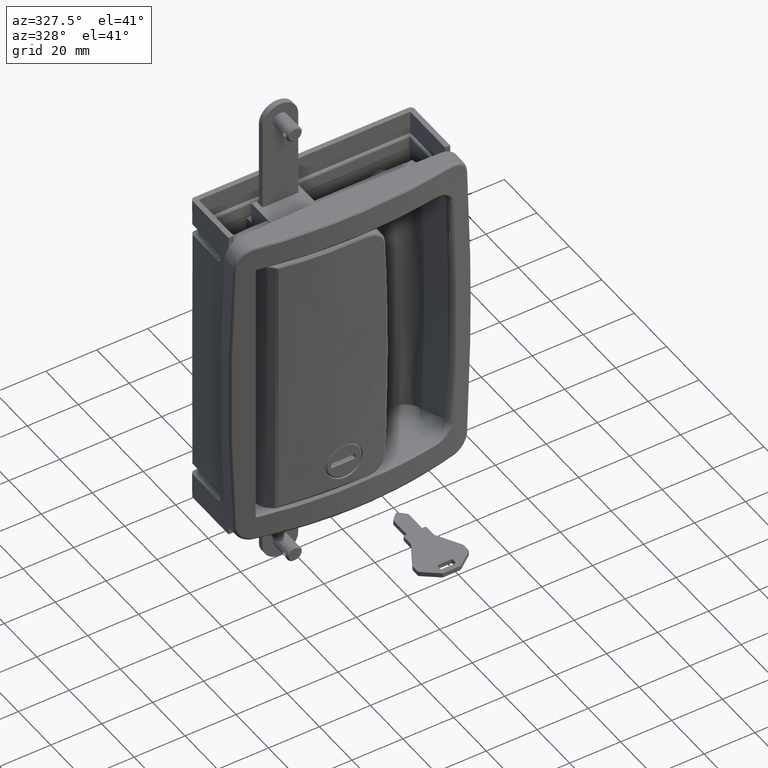
[diagram: clean part render]
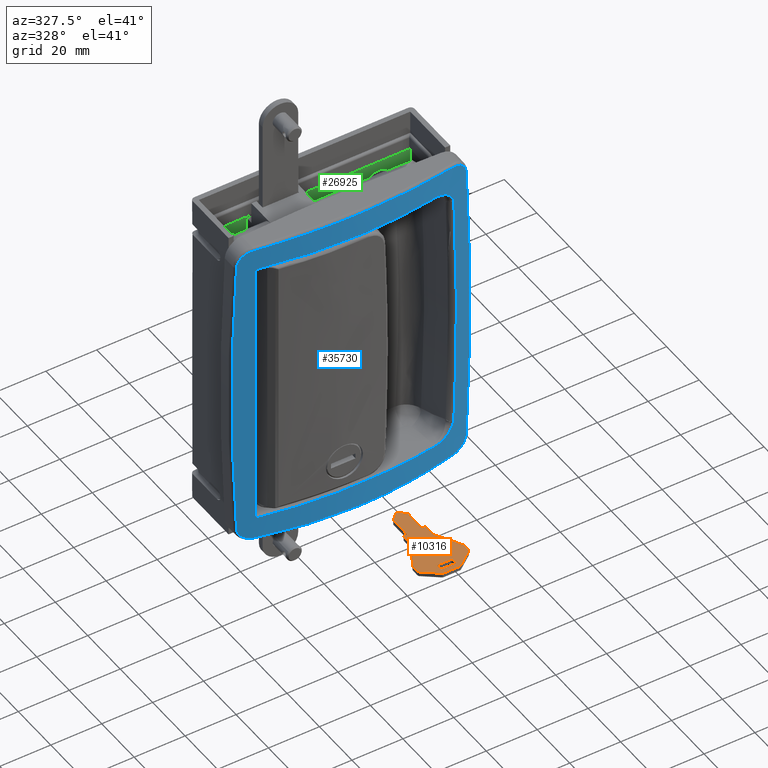
[diagram: same view with three faces highlighted in distinct colors, each labeled with its STEP entity id]
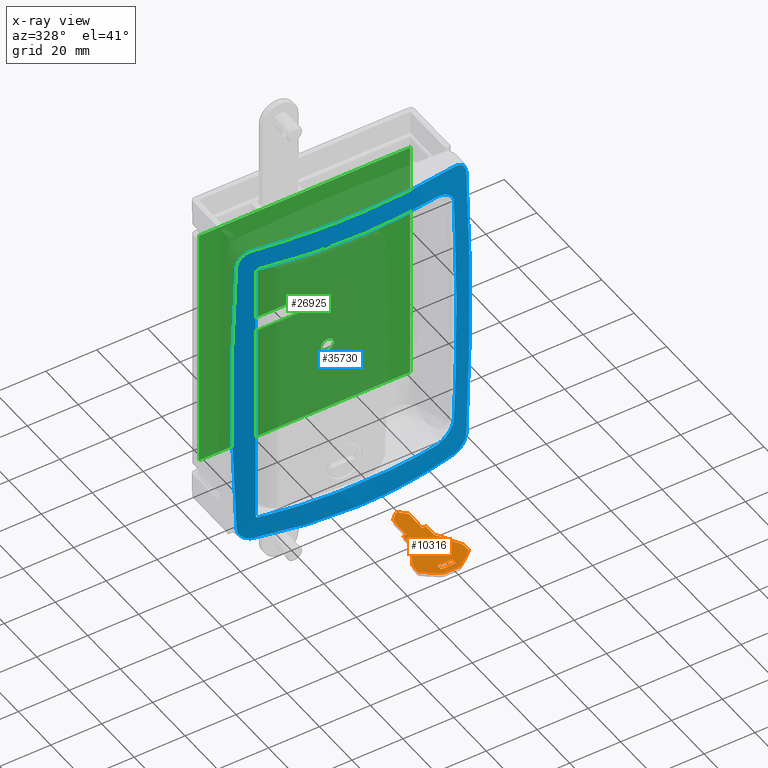
[diagram: x-ray of the same camera — body ghosted, the three highlighted faces saturated]
A machine part, auxiliary view with three faces highlighted in distinct colors.
The next image is the same camera in x-ray (body ghosted, the three faces saturated) — at least one of them is partly hidden behind the body in this view.
Their STEP definitions:

[orange] entity #10316 — the highlighted face is a freeform B-spline surface patch.
#10040=CARTESIAN_POINT('',(30.501000038756189,-78.106108271841649,-41.100000000084087));
#10041=CARTESIAN_POINT('',(52.499000497673457,-78.106108271841649,-41.100000000084087));
#10042=CARTESIAN_POINT('',(30.501000038756189,-40.709466700712120,-41.100000000084087));
#10043=CARTESIAN_POINT('',(52.499000497673457,-40.709466700712120,-41.100000000084087));
#10044=B_SPLINE_SURFACE_WITH_KNOTS('',1,1,((#10040,#10042),(#10041,#10043)),.UNSPECIFIED.,.F.,.F.,.U.,(2,2),(2,2),(0.0,21.998000458917279),(0.0,37.396641571129528),.UNSPECIFIED.);
#10045=CARTESIAN_POINT('',(51.365426285473397,-67.675360370427200,-41.100000000084052));
#10046=VERTEX_POINT('',#10045);
#10047=CARTESIAN_POINT('',(45.999999999982698,-58.407805877323298,-41.100000000084052));
#10048=VERTEX_POINT('',#10047);
#10049=CARTESIAN_POINT('',(51.365426285473397,-67.675360370427200,-41.100000000084052));
#10050=CARTESIAN_POINT('',(45.999999999982698,-58.407805877323298,-41.100000000084052));
#10051=QUASI_UNIFORM_CURVE('',1,(#10049,#10050),.UNSPECIFIED.,.F.,.U.);
#10052=EDGE_CURVE('',#10046,#10048,#10051,.T.);
#10053=ORIENTED_EDGE('',*,*,#10052,.T.);
#10054=CARTESIAN_POINT('',(45.999999999982698,-53.907805877323298,-41.100000000084052));
#10055=VERTEX_POINT('',#10054);
#10056=CARTESIAN_POINT('',(45.999999999982698,-58.407805877323298,-41.100000000084052));
#10057=CARTESIAN_POINT('',(45.999999999982698,-53.907805877323298,-41.100000000084052));
#10058=QUASI_UNIFORM_CURVE('',1,(#10056,#10057),.UNSPECIFIED.,.F.,.U.);
#10059=EDGE_CURVE('',#10048,#10055,#10058,.T.);
#10060=ORIENTED_EDGE('',*,*,#10059,.T.);
#10061=CARTESIAN_POINT('',(45.499999999982897,-53.407805877323298,-41.100000000084052));
#10062=VERTEX_POINT('',#10061);
#10063=CARTESIAN_POINT('',(45.499999999982897,-53.407805877323298,-41.100000000084052));
#10064=CARTESIAN_POINT('',(45.598287149058010,-53.407468816619037,-41.100000000084087));
#10065=CARTESIAN_POINT('',(45.745067844171743,-53.452597545005403,-41.100000000084037));
#10066=CARTESIAN_POINT('',(45.941303609993867,-53.630407872664293,-41.100000000084037));
#10067=CARTESIAN_POINT('',(46.000664733331099,-53.793013518035231,-41.100000000084087));
#10068=CARTESIAN_POINT('',(45.999999999982698,-53.907805877323298,-41.100000000084052));
#10069=B_SPLINE_CURVE_WITH_KNOTS('',3,(#10063,#10064,#10065,#10066,#10067,#10068),.UNSPECIFIED.,.F.,.U.,(4,1,1,4),(0.000001105986937,0.294589942920244,0.441798907283082,0.785476942184349),.UNSPECIFIED.);
#10070=EDGE_CURVE('',#10062,#10055,#10069,.T.);
#10071=ORIENTED_EDGE('',*,*,#10070,.F.);
#10072=CARTESIAN_POINT('',(44.499999999982890,-53.407805877323298,-41.100000000084052));
#10073=VERTEX_POINT('',#10072);
#10074=CARTESIAN_POINT('',(45.499999999982897,-53.407805877323298,-41.100000000084052));
#10075=CARTESIAN_POINT('',(44.499999999982890,-53.407805877323298,-41.100000000084052));
#10076=QUASI_UNIFORM_CURVE('',1,(#10074,#10075),.UNSPECIFIED.,.F.,.U.);
#10077=EDGE_CURVE('',#10062,#10073,#10076,.T.);
#10078=ORIENTED_EDGE('',*,*,#10077,.T.);
#10079=CARTESIAN_POINT('',(44.499999999982890,-44.993592314855903,-41.100000000084052));
#10080=VERTEX_POINT('',#10079);
#10081=CARTESIAN_POINT('',(44.499999999982890,-53.407805877323298,-41.100000000084052));
#10082=CARTESIAN_POINT('',(44.499999999982890,-44.993592314855903,-41.100000000084052));
#10083=QUASI_UNIFORM_CURVE('',1,(#10081,#10082),.UNSPECIFIED.,.F.,.U.);
#10084=EDGE_CURVE('',#10073,#10080,#10083,.T.);
#10085=ORIENTED_EDGE('',*,*,#10084,.T.);
#10086=CARTESIAN_POINT('',(42.207106781203642,-42.700699096084513,-41.100000000084052));
#10087=VERTEX_POINT('',#10086);
#10088=CARTESIAN_POINT('',(44.499999999982890,-44.993592314855903,-41.100000000084052));
#10089=CARTESIAN_POINT('',(42.207106781203642,-42.700699096084513,-41.100000000084052));
#10090=QUASI_UNIFORM_CURVE('',1,(#10088,#10089),.UNSPECIFIED.,.F.,.U.);
#10091=EDGE_CURVE('',#10080,#10087,#10090,.T.);
#10092=ORIENTED_EDGE('',*,*,#10091,.T.);
#10093=CARTESIAN_POINT('',(40.792893218780598,-42.700699096136901,-41.100000000084052));
#10094=VERTEX_POINT('',#10093);
#10095=CARTESIAN_POINT('',(40.792893218780598,-42.700699096136901,-41.100000000084052));
#10096=CARTESIAN_POINT('',(40.873839330120767,-42.619676108853987,-41.100000000084073));
#10097=CARTESIAN_POINT('',(41.077530122789078,-42.476277849633640,-41.100000000084030));
#10098=CARTESIAN_POINT('',(41.482078245224699,-42.374629288458763,-41.100000000084087));
#10099=CARTESIAN_POINT('',(41.895383997631562,-42.456989418475089,-41.100000000084023));
#10100=CARTESIAN_POINT('',(42.126153499139207,-42.619697593414628,-41.100000000084080));
#10101=CARTESIAN_POINT('',(42.207106781203642,-42.700699096084513,-41.100000000084052));
#10102=B_SPLINE_CURVE_WITH_KNOTS('',3,(#10095,#10096,#10097,#10098,#10099,#10100,#10101),.UNSPECIFIED.,.F.,.U.,(4,1,1,1,4),(0.000001035568489,0.343638637568940,0.736452044527693,1.227316281643501,1.570953883643634),.UNSPECIFIED.);
#10103=EDGE_CURVE('',#10094,#10087,#10102,.T.);
#10104=ORIENTED_EDGE('',*,*,#10103,.F.);
#10105=CARTESIAN_POINT('',(38.499999999982897,-44.993592314835752,-41.100000000084052));
#10106=VERTEX_POINT('',#10105);
#10107=CARTESIAN_POINT('',(40.792893218780598,-42.700699096136901,-41.100000000084052));
#10108=CARTESIAN_POINT('',(38.499999999982897,-44.993592314835752,-41.100000000084052));
#10109=QUASI_UNIFORM_CURVE('',1,(#10107,#10108),.UNSPECIFIED.,.F.,.U.);
#10110=EDGE_CURVE('',#10094,#10106,#10109,.T.);
#10111=ORIENTED_EDGE('',*,*,#10110,.T.);
#10112=CARTESIAN_POINT('',(38.499999999982897,-53.407805877323298,-41.100000000084052));
#10113=VERTEX_POINT('',#10112);
#10114=CARTESIAN_POINT('',(38.499999999982897,-44.993592314835752,-41.100000000084052));
#10115=CARTESIAN_POINT('',(38.499999999982897,-53.407805877323298,-41.100000000084052));
#10116=QUASI_UNIFORM_CURVE('',1,(#10114,#10115),.UNSPECIFIED.,.F.,.U.);
#10117=EDGE_CURVE('',#10106,#10113,#10116,.T.);
#10118=ORIENTED_EDGE('',*,*,#10117,.T.);
#10119=CARTESIAN_POINT('',(37.499999999982698,-53.407805877323298,-41.100000000084052));
#10120=VERTEX_POINT('',#10119);
#10121=CARTESIAN_POINT('',(38.499999999982897,-53.407805877323298,-41.100000000084052));
#10122=CARTESIAN_POINT('',(37.499999999982698,-53.407805877323298,-41.100000000084052));
#10123=QUASI_UNIFORM_CURVE('',1,(#10121,#10122),.UNSPECIFIED.,.F.,.U.);
#10124=EDGE_CURVE('',#10113,#10120,#10123,.T.);
#10125=ORIENTED_EDGE('',*,*,#10124,.T.);
#10126=CARTESIAN_POINT('',(36.999999999982641,-53.907805877323298,-41.100000000084052));
#10127=VERTEX_POINT('',#10126);
#10128=CARTESIAN_POINT('',(36.999999999982641,-53.907805877323298,-41.100000000084052));
#10129=CARTESIAN_POINT('',(36.999636723917718,-53.809513540537850,-41.100000000084059));
#10130=CARTESIAN_POINT('',(37.044813654035813,-53.662742848145868,-41.100000000084023));
#10131=CARTESIAN_POINT('',(37.222592100784837,-53.466501597791677,-41.100000000084080));
#10132=CARTESIAN_POINT('',(37.385208224366302,-53.407139604979960,-41.100000000084023));
#10133=CARTESIAN_POINT('',(37.499999999982698,-53.407805877323298,-41.100000000084052));
#10134=B_SPLINE_CURVE_WITH_KNOTS('',3,(#10128,#10129,#10130,#10131,#10132,#10133),.UNSPECIFIED.,.F.,.U.,(4,1,1,4),(0.000001105986292,0.294589942919956,0.441798907282902,0.785476942184639),.UNSPECIFIED.);
#10135=EDGE_CURVE('',#10127,#10120,#10134,.T.);
#10136=ORIENTED_EDGE('',*,*,#10135,.F.);
#10137=CARTESIAN_POINT('',(36.999999999982897,-58.407805877323298,-41.100000000084052));
#10138=VERTEX_POINT('',#10137);
#10139=CARTESIAN_POINT('',(36.999999999982641,-53.907805877323298,-41.100000000084052));
#10140=CARTESIAN_POINT('',(36.999999999982897,-58.407805877323298,-41.100000000084052));
#10141=QUASI_UNIFORM_CURVE('',1,(#10139,#10140),.UNSPECIFIED.,.F.,.U.);
#10142=EDGE_CURVE('',#10127,#10138,#10141,.T.);
#10143=ORIENTED_EDGE('',*,*,#10142,.T.);
#10144=CARTESIAN_POINT('',(31.634573714511049,-67.675360370426702,-41.100000000084052));
#10145=VERTEX_POINT('',#10144);
#10146=CARTESIAN_POINT('',(36.999999999982897,-58.407805877323298,-41.100000000084052));
#10147=CARTESIAN_POINT('',(31.634573714511049,-67.675360370426702,-41.100000000084052));
#10148=QUASI_UNIFORM_CURVE('',1,(#10146,#10147),.UNSPECIFIED.,.F.,.U.);
#10149=EDGE_CURVE('',#10138,#10145,#10148,.T.);
#10150=ORIENTED_EDGE('',*,*,#10149,.T.);
#10151=CARTESIAN_POINT('',(31.499999999992450,-68.176396640968008,-41.100000000084052));
#10152=VERTEX_POINT('',#10151);
#10153=CARTESIAN_POINT('',(31.499999999992450,-68.176396640968008,-41.100000000084052));
#10154=CARTESIAN_POINT('',(31.499685477292079,-68.001386553096665,-41.100000000084002));
#10155=CARTESIAN_POINT('',(31.546742540889319,-67.826681927621351,-41.100000000084080));
#10156=CARTESIAN_POINT('',(31.634573714511049,-67.675360370426702,-41.100000000084052));
#10157=B_SPLINE_CURVE_WITH_KNOTS('',3,(#10153,#10154,#10155,#10156),.UNSPECIFIED.,.F.,.U.,(4,4),(0.000000151863138,0.524889672292369),.UNSPECIFIED.);
#10158=EDGE_CURVE('',#10152,#10145,#10157,.T.);
#10159=ORIENTED_EDGE('',*,*,#10158,.F.);
#10160=CARTESIAN_POINT('',(31.499999999995349,-70.915404379873394,-41.100000000084052));
#10161=VERTEX_POINT('',#10160);
#10162=CARTESIAN_POINT('',(31.499999999992450,-68.176396640968008,-41.100000000084052));
#10163=CARTESIAN_POINT('',(31.499999999995349,-70.915404379873394,-41.100000000084052));
#10164=QUASI_UNIFORM_CURVE('',1,(#10162,#10163),.UNSPECIFIED.,.F.,.U.);
#10165=EDGE_CURVE('',#10152,#10161,#10164,.T.);
#10166=ORIENTED_EDGE('',*,*,#10165,.T.);
#10167=CARTESIAN_POINT('',(31.890289239145499,-71.708028368976798,-41.100000000084052));
#10168=VERTEX_POINT('',#10167);
#10169=CARTESIAN_POINT('',(31.890289239145499,-71.708028368976798,-41.100000000084052));
#10170=CARTESIAN_POINT('',(31.784413765313701,-71.626755160693406,-41.100000000084023));
#10171=CARTESIAN_POINT('',(31.580599266782411,-71.391587425745811,-41.100000000084073));
#10172=CARTESIAN_POINT('',(31.499554523118139,-71.087084067706868,-41.100000000084052));
#10173=CARTESIAN_POINT('',(31.499999999995349,-70.915404379873394,-41.100000000084052));
#10174=B_SPLINE_CURVE_WITH_KNOTS('',3,(#10169,#10170,#10171,#10172,#10173),.UNSPECIFIED.,.F.,.U.,(4,1,4),(0.000000362969238,0.400432484835538,0.915225252862819),.UNSPECIFIED.);
#10175=EDGE_CURVE('',#10168,#10161,#10174,.T.);
#10176=ORIENTED_EDGE('',*,*,#10175,.F.);
#10177=CARTESIAN_POINT('',(37.730411185828252,-76.200429866427797,-41.100000000084052));
#10178=VERTEX_POINT('',#10177);
#10179=CARTESIAN_POINT('',(31.890289239145499,-71.708028368976798,-41.100000000084052));
#10180=CARTESIAN_POINT('',(37.730411185828252,-76.200429866427797,-41.100000000084052));
#10181=QUASI_UNIFORM_CURVE('',1,(#10179,#10180),.UNSPECIFIED.,.F.,.U.);
#10182=EDGE_CURVE('',#10168,#10178,#10181,.T.);
#10183=ORIENTED_EDGE('',*,*,#10182,.T.);
#10184=CARTESIAN_POINT('',(38.340121946677947,-76.407805877323312,-41.100000000084052));
#10185=VERTEX_POINT('',#10184);
#10186=CARTESIAN_POINT('',(38.340121946677947,-76.407805877323312,-41.100000000084052));
#10187=CARTESIAN_POINT('',(38.121417879291783,-76.408304943474306,-41.100000000084151));
#10188=CARTESIAN_POINT('',(37.903381161410003,-76.334388198290341,-41.100000000083853));
#10189=CARTESIAN_POINT('',(37.730411185828252,-76.200429866427797,-41.100000000084052));
#10190=B_SPLINE_CURVE_WITH_KNOTS('',3,(#10186,#10187,#10188,#10189),.UNSPECIFIED.,.F.,.U.,(4,4),(0.000000178047596,0.655741476951016),.UNSPECIFIED.);
#10191=EDGE_CURVE('',#10185,#10178,#10190,.T.);
#10192=ORIENTED_EDGE('',*,*,#10191,.F.);
#10193=CARTESIAN_POINT('',(44.659878053315254,-76.407805877323312,-41.100000000084052));
#10194=VERTEX_POINT('',#10193);
#10195=CARTESIAN_POINT('',(38.340121946677947,-76.407805877323312,-41.100000000084052));
#10196=CARTESIAN_POINT('',(44.659878053315254,-76.407805877323312,-41.100000000084052));
#10197=QUASI_UNIFORM_CURVE('',1,(#10195,#10196),.UNSPECIFIED.,.F.,.U.);
#10198=EDGE_CURVE('',#10185,#10194,#10197,.T.);
#10199=ORIENTED_EDGE('',*,*,#10198,.T.);
#10200=CARTESIAN_POINT('',(45.269588814165097,-76.200429866427797,-41.100000000084052));
#10201=VERTEX_POINT('',#10200);
#10202=CARTESIAN_POINT('',(45.269588814165097,-76.200429866427797,-41.100000000084052));
#10203=CARTESIAN_POINT('',(45.096542478944677,-76.334172598460398,-41.100000000083988));
#10204=CARTESIAN_POINT('',(44.878653554509810,-76.408520310289049,-41.100000000084023));
#10205=CARTESIAN_POINT('',(44.659878053315254,-76.407805877323312,-41.100000000084052));
#10206=B_SPLINE_CURVE_WITH_KNOTS('',3,(#10202,#10203,#10204,#10205),.UNSPECIFIED.,.F.,.U.,(4,4),(0.000000178046717,0.655741476951146),.UNSPECIFIED.);
#10207=EDGE_CURVE('',#10201,#10194,#10206,.T.);
#10208=ORIENTED_EDGE('',*,*,#10207,.F.);
#10209=CARTESIAN_POINT('',(51.109710760844798,-71.708028368977793,-41.100000000084052));
#10210=VERTEX_POINT('',#10209);
#10211=CARTESIAN_POINT('',(45.269588814165097,-76.200429866427797,-41.100000000084052));
#10212=CARTESIAN_POINT('',(51.109710760844798,-71.708028368977793,-41.100000000084052));
#10213=QUASI_UNIFORM_CURVE('',1,(#10211,#10212),.UNSPECIFIED.,.F.,.U.);
#10214=EDGE_CURVE('',#10201,#10210,#10213,.T.);
#10215=ORIENTED_EDGE('',*,*,#10214,.T.);
#10216=CARTESIAN_POINT('',(51.499999999995403,-70.915404379872996,-41.100000000084052));
#10217=VERTEX_POINT('',#10216);
#10218=CARTESIAN_POINT('',(51.499999999995403,-70.915404379872996,-41.100000000084052));
#10219=CARTESIAN_POINT('',(51.500445610795722,-71.087082916580727,-41.100000000084052));
#10220=CARTESIAN_POINT('',(51.419401474890407,-71.391589117464491,-41.100000000084023));
#10221=CARTESIAN_POINT('',(51.215583967526797,-71.626756596573230,-41.100000000084087));
#10222=CARTESIAN_POINT('',(51.109710760844798,-71.708028368977793,-41.100000000084052));
#10223=B_SPLINE_CURVE_WITH_KNOTS('',3,(#10218,#10219,#10220,#10221,#10222),.UNSPECIFIED.,.F.,.U.,(4,1,4),(0.000000362969149,0.514793130997347,0.915225252864475),.UNSPECIFIED.);
#10224=EDGE_CURVE('',#10217,#10210,#10223,.T.);
#10225=ORIENTED_EDGE('',*,*,#10224,.F.);
#10226=CARTESIAN_POINT('',(51.499999999992703,-68.176396640968505,-41.100000000084052));
#10227=VERTEX_POINT('',#10226);
#10228=CARTESIAN_POINT('',(51.499999999995403,-70.915404379872996,-41.100000000084052));
#10229=CARTESIAN_POINT('',(51.499999999992703,-68.176396640968505,-41.100000000084052));
#10230=QUASI_UNIFORM_CURVE('',1,(#10228,#10229),.UNSPECIFIED.,.F.,.U.);
#10231=EDGE_CURVE('',#10217,#10227,#10230,.T.);
#10232=ORIENTED_EDGE('',*,*,#10231,.T.);
#10233=CARTESIAN_POINT('',(51.365426285473397,-67.675360370427200,-41.100000000084052));
#10234=CARTESIAN_POINT('',(51.453243283571773,-67.826696165572571,-41.100000000084030));
#10235=CARTESIAN_POINT('',(51.500328726463088,-68.001363735175289,-41.100000000084052));
#10236=CARTESIAN_POINT('',(51.499999999992703,-68.176396640968505,-41.100000000084052));
#10237=B_SPLINE_CURVE_WITH_KNOTS('',3,(#10233,#10234,#10235,#10236),.UNSPECIFIED.,.F.,.U.,(4,4),(0.000000151862792,0.524889672292601),.UNSPECIFIED.);
#10238=EDGE_CURVE('',#10046,#10227,#10237,.T.);
#10239=ORIENTED_EDGE('',*,*,#10238,.F.);
#10240=EDGE_LOOP('',(#10053,#10060,#10071,#10078,#10085,#10092,#10104,#10111,#10118,#10125,#10136,#10143,#10150,#10159,#10166,#10176,#10183,#10192,#10199,#10208,#10215,#10225,#10232,#10239));
#10241=FACE_OUTER_BOUND('',#10240,.T.);
#10242=CARTESIAN_POINT('',(43.999999999996703,-71.907805877323199,-41.100000000084052));
#10243=VERTEX_POINT('',#10242);
#10244=CARTESIAN_POINT('',(44.499999999996703,-72.407805877323298,-41.100000000084052));
#10245=VERTEX_POINT('',#10244);
#10246=CARTESIAN_POINT('',(43.999999999996703,-71.907805877323199,-41.100000000084052));
#10247=CARTESIAN_POINT('',(44.081845133713387,-71.907663379125992,-41.100000000084073));
#10248=CARTESIAN_POINT('',(44.220688611335810,-71.942727398584935,-41.100000000084059));
#10249=CARTESIAN_POINT('',(44.430471476731547,-72.106101247400858,-41.100000000084023));
#10250=CARTESIAN_POINT('',(44.500773858058047,-72.284771149373455,-41.100000000084059));
#10251=CARTESIAN_POINT('',(44.499999999996703,-72.407805877323298,-41.100000000084052));
#10252=B_SPLINE_CURVE_WITH_KNOTS('',3,(#10246,#10247,#10248,#10249,#10250,#10251),.UNSPECIFIED.,.F.,.U.,(4,1,1,4),(0.000001105986146,0.245483842690447,0.417205839541050,0.785476942184741),.UNSPECIFIED.);
#10253=EDGE_CURVE('',#10243,#10245,#10252,.T.);
#10254=ORIENTED_EDGE('',*,*,#10253,.T.);
#10255=CARTESIAN_POINT('',(44.499999999995097,-73.907805877323398,-41.100000000084052));
#10256=VERTEX_POINT('',#10255);
#10257=CARTESIAN_POINT('',(44.499999999996703,-72.407805877323298,-41.100000000084052));
#10258=CARTESIAN_POINT('',(44.499999999995097,-73.907805877323398,-41.100000000084052));
#10259=QUASI_UNIFORM_CURVE('',1,(#10257,#10258),.UNSPECIFIED.,.F.,.U.);
#10260=EDGE_CURVE('',#10245,#10256,#10259,.T.);
#10261=ORIENTED_EDGE('',*,*,#10260,.T.);
#10262=CARTESIAN_POINT('',(43.999999999995097,-74.407805877323398,-41.100000000084052));
#10263=VERTEX_POINT('',#10262);
#10264=CARTESIAN_POINT('',(44.499999999995097,-73.907805877323398,-41.100000000084052));
#10265=CARTESIAN_POINT('',(44.500895096640747,-74.030874108827788,-41.100000000084108));
#10266=CARTESIAN_POINT('',(44.427171167104682,-74.217645762603070,-41.100000000083952));
#10267=CARTESIAN_POINT('',(44.212579863957167,-74.376519713631097,-41.100000000084137));
#10268=CARTESIAN_POINT('',(44.073652317991353,-74.407916363840073,-41.100000000084023));
#10269=CARTESIAN_POINT('',(43.999999999995097,-74.407805877323398,-41.100000000084052));
#10270=B_SPLINE_CURVE_WITH_KNOTS('',3,(#10264,#10265,#10266,#10267,#10268,#10269),.UNSPECIFIED.,.F.,.U.,(4,1,1,4),(0.000001105984337,0.368272208628575,0.564557827446590,0.785476942184655),.UNSPECIFIED.);
#10271=EDGE_CURVE('',#10256,#10263,#10270,.T.);
#10272=ORIENTED_EDGE('',*,*,#10271,.T.);
#10273=CARTESIAN_POINT('',(38.999999999998302,-74.407805877323398,-41.100000000084052));
#10274=VERTEX_POINT('',#10273);
#10275=CARTESIAN_POINT('',(43.999999999995097,-74.407805877323398,-41.100000000084052));
#10276=CARTESIAN_POINT('',(38.999999999998302,-74.407805877323398,-41.100000000084052));
#10277=QUASI_UNIFORM_CURVE('',1,(#10275,#10276),.UNSPECIFIED.,.F.,.U.);
#10278=EDGE_CURVE('',#10263,#10274,#10277,.T.);
#10279=ORIENTED_EDGE('',*,*,#10278,.T.);
#10280=CARTESIAN_POINT('',(38.499999999998302,-73.907805877323398,-41.100000000084052));
#10281=VERTEX_POINT('',#10280);
#10282=CARTESIAN_POINT('',(38.999999999998302,-74.407805877323398,-41.100000000084052));
#10283=CARTESIAN_POINT('',(38.876963638087567,-74.408579439422383,-41.100000000084123));
#10284=CARTESIAN_POINT('',(38.698295814174116,-74.338277521623226,-41.100000000083988));
#10285=CARTESIAN_POINT('',(38.534922646499879,-74.128494245264491,-41.100000000084037));
#10286=CARTESIAN_POINT('',(38.499856887498048,-73.989652174454150,-41.100000000084080));
#10287=CARTESIAN_POINT('',(38.499999999998302,-73.907805877323398,-41.100000000084052));
#10288=B_SPLINE_CURVE_WITH_KNOTS('',3,(#10282,#10283,#10284,#10285,#10286,#10287),.UNSPECIFIED.,.F.,.U.,(4,1,1,4),(0.000001105983747,0.368272208628892,0.539994205479963,0.785476942184630),.UNSPECIFIED.);
#10289=EDGE_CURVE('',#10274,#10281,#10288,.T.);
#10290=ORIENTED_EDGE('',*,*,#10289,.T.);
#10291=CARTESIAN_POINT('',(38.499999999996703,-72.407805877323113,-41.100000000084052));
#10292=VERTEX_POINT('',#10291);
#10293=CARTESIAN_POINT('',(38.499999999998302,-73.907805877323398,-41.100000000084052));
#10294=CARTESIAN_POINT('',(38.499999999996703,-72.407805877323113,-41.100000000084052));
#10295=QUASI_UNIFORM_CURVE('',1,(#10293,#10294),.UNSPECIFIED.,.F.,.U.);
#10296=EDGE_CURVE('',#10281,#10292,#10295,.T.);
#10297=ORIENTED_EDGE('',*,*,#10296,.T.);
#10298=CARTESIAN_POINT('',(38.999999999996703,-71.907805877323298,-41.100000000084052));
#10299=VERTEX_POINT('',#10298);
#10300=CARTESIAN_POINT('',(38.499999999996703,-72.407805877323113,-41.100000000084052));
#10301=CARTESIAN_POINT('',(38.499672012715237,-72.309516340012209,-41.100000000084108));
#10302=CARTESIAN_POINT('',(38.542274515292483,-72.170928700551329,-41.100000000084002));
#10303=CARTESIAN_POINT('',(38.714615381265233,-71.970979962510128,-41.100000000084130));
#10304=CARTESIAN_POINT('',(38.876904639680099,-71.906938142698692,-41.100000000083917));
#10305=CARTESIAN_POINT('',(38.999999999996703,-71.907805877323298,-41.100000000084052));
#10306=B_SPLINE_CURVE_WITH_KNOTS('',3,(#10300,#10301,#10302,#10303,#10304,#10305),.UNSPECIFIED.,.F.,.U.,(4,1,1,4),(0.000001105986542,0.294589942920272,0.417205839541365,0.785476942184506),.UNSPECIFIED.);
#10307=EDGE_CURVE('',#10292,#10299,#10306,.T.);
#10308=ORIENTED_EDGE('',*,*,#10307,.T.);
#10309=CARTESIAN_POINT('',(38.999999999996703,-71.907805877323298,-41.100000000084052));
#10310=CARTESIAN_POINT('',(43.999999999996703,-71.907805877323199,-41.100000000084052));
#10311=QUASI_UNIFORM_CURVE('',1,(#10309,#10310),.UNSPECIFIED.,.F.,.U.);
#10312=EDGE_CURVE('',#10299,#10243,#10311,.T.);
#10313=ORIENTED_EDGE('',*,*,#10312,.T.);
#10314=EDGE_LOOP('',(#10254,#10261,#10272,#10279,#10290,#10297,#10308,#10313));
#10315=FACE_BOUND('',#10314,.T.);
#10316=ADVANCED_FACE('',(#10241,#10315),#10044,.T.);

[blue] entity #35730 — the highlighted face is a freeform B-spline surface patch.
#29841=CARTESIAN_POINT('',(9.599075922486570,-6.702029921154320,-54.500000000000902));
#29842=VERTEX_POINT('',#29841);
#29843=CARTESIAN_POINT('',(8.999999999988750,-6.579965081214199,-53.583589882531903));
#29844=VERTEX_POINT('',#29843);
#29845=CARTESIAN_POINT('',(9.599075922486570,-6.702029921154320,-54.500000000000902));
#29846=CARTESIAN_POINT('',(9.566692796400959,-6.695476421284351,-54.475411583856307));
#29847=CARTESIAN_POINT('',(9.499483996925358,-6.681875113685147,-54.424380129431377));
#29848=CARTESIAN_POINT('',(9.404792877149061,-6.662649505394791,-54.332439576654721));
#29849=CARTESIAN_POINT('',(9.310166908435646,-6.643394465819999,-54.226429793515763));
#29850=CARTESIAN_POINT('',(9.214204128523051,-6.623818153537632,-54.102935523686106));
#29851=CARTESIAN_POINT('',(9.124598454653725,-6.605492644829222,-53.970241880236948));
#29852=CARTESIAN_POINT('',(9.054796662721941,-6.591189979142562,-53.833834482816357));
#29853=CARTESIAN_POINT('',(9.009322687428956,-6.581863360071954,-53.706281123828767));
#29854=CARTESIAN_POINT('',(9.002975536823840,-6.580570957867338,-53.622749439275943));
#29855=CARTESIAN_POINT('',(8.999999999988750,-6.579965081214199,-53.583589882531903));
#29856=B_SPLINE_CURVE_WITH_KNOTS('',3,(#29845,#29846,#29847,#29848,#29849,#29850,#29851,#29852,#29853,#29854,#29855),.UNSPECIFIED.,.F.,.U.,(4,1,1,1,1,1,1,1,4),(0.000000050481181,0.109058478817373,0.226342812403613,0.352712374429354,0.488854600462004,0.643843752490214,0.778844778220197,0.896322688775079,1.0),.UNSPECIFIED.);
#29857=EDGE_CURVE('',#29842,#29844,#29856,.T.);
#30042=CARTESIAN_POINT('',(8.999999999988750,-6.579965081214199,53.583589882528287));
#30043=VERTEX_POINT('',#30042);
#30044=CARTESIAN_POINT('',(9.599075922485369,-6.702029921151540,54.500000000000902));
#30045=VERTEX_POINT('',#30044);
#30046=CARTESIAN_POINT('',(8.999999999988750,-6.579965081214199,53.583589882528287));
#30047=CARTESIAN_POINT('',(9.001266810657866,-6.580221591940397,53.609230082111957));
#30048=CARTESIAN_POINT('',(9.003901980963725,-6.580755175581020,53.662565828507681));
#30049=CARTESIAN_POINT('',(9.023668971327792,-6.584806638629321,53.744079223000163));
#30050=CARTESIAN_POINT('',(9.054566728948615,-6.591141616838542,53.829640212636207));
#30051=CARTESIAN_POINT('',(9.097956137490129,-6.600033695094533,53.919296578469933));
#30052=CARTESIAN_POINT('',(9.153343960237335,-6.611372599447230,54.013143145252542));
#30053=CARTESIAN_POINT('',(9.234700174660173,-6.628003394400525,54.130848263186230));
#30054=CARTESIAN_POINT('',(9.339064712893963,-6.649284187424210,54.261888982053087));
#30055=CARTESIAN_POINT('',(9.464541667633382,-6.674796151140972,54.395485508702130));
#30056=CARTESIAN_POINT('',(9.555720059208518,-6.693253393494603,54.466318497744297));
#30057=CARTESIAN_POINT('',(9.599075922485369,-6.702029921151540,54.500000000000902));
#30058=B_SPLINE_CURVE_WITH_KNOTS('',3,(#30046,#30047,#30048,#30049,#30050,#30051,#30052,#30053,#30054,#30055,#30056,#30057),.UNSPECIFIED.,.F.,.U.,(4,1,1,1,1,1,1,1,1,4),(0.0,0.067887309138870,0.141216541310648,0.221320209355252,0.309223285366422,0.405702483639385,0.511345526070646,0.690605453808746,0.852881040407294,0.999999941705247),.UNSPECIFIED.);
#30059=EDGE_CURVE('',#30043,#30045,#30058,.T.);
#30186=CARTESIAN_POINT('',(78.269204066006097,-8.005596772646090,-54.500000000004398));
#30187=VERTEX_POINT('',#30186);
#30188=CARTESIAN_POINT('',(78.269204066006097,-8.005596772646090,-54.500000000004398));
#30189=CARTESIAN_POINT('',(71.169617046083673,-9.164456456189978,-54.500000000004079));
#30190=CARTESIAN_POINT('',(57.555875984851554,-10.602937384950851,-54.500000000003297));
#30191=CARTESIAN_POINT('',(34.506827224920620,-10.556137995763279,-54.500000000002167));
#30192=CARTESIAN_POINT('',(18.764673808468181,-8.558058871130950,-54.500000000001357));
#30193=CARTESIAN_POINT('',(9.599075922486570,-6.702029921154320,-54.500000000000902));
#30194=B_SPLINE_CURVE_WITH_KNOTS('',3,(#30188,#30189,#30190,#30191,#30192,#30193),.UNSPECIFIED.,.F.,.U.,(4,1,1,4),(3.980361E-009,21.580622754430149,41.003167980612282,69.057978517330241),.UNSPECIFIED.);
#30195=EDGE_CURVE('',#30187,#29842,#30194,.T.);
#30338=CARTESIAN_POINT('',(86.913000136790401,-6.389771469008990,-48.486246136743503));
#30339=VERTEX_POINT('',#30338);
#30340=CARTESIAN_POINT('',(86.913000136790401,-6.389771469008990,-48.486246136743503));
#30341=CARTESIAN_POINT('',(86.812504066507898,-6.410918498729897,-48.753279671610713));
#30342=CARTESIAN_POINT('',(86.634906128188220,-6.448289799592488,-49.225184878865250));
#30343=CARTESIAN_POINT('',(86.317330621516390,-6.514481829233340,-49.910956414097917));
#30344=CARTESIAN_POINT('',(85.945449519042384,-6.591344250926034,-50.530824343260029));
#30345=CARTESIAN_POINT('',(85.368872955608552,-6.709156392245324,-51.328776034403262));
#30346=CARTESIAN_POINT('',(84.531033032164245,-6.877315631739130,-52.218986659064882));
#30347=CARTESIAN_POINT('',(83.396023617967245,-7.098263442214736,-53.073477069571830));
#30348=CARTESIAN_POINT('',(82.162642814561579,-7.330171280076550,-53.729765243865842));
#30349=CARTESIAN_POINT('',(81.026822836001656,-7.535893966258069,-54.129573540935169));
#30350=CARTESIAN_POINT('',(80.012887499467652,-7.713343454385508,-54.358005303553291));
#30351=CARTESIAN_POINT('',(79.145842158132581,-7.861307618084020,-54.478069585884477));
#30352=CARTESIAN_POINT('',(78.562153889906540,-7.957379061370139,-54.492671421638640));
#30353=CARTESIAN_POINT('',(78.269204066006097,-8.005596772646090,-54.500000000004398));
#30354=B_SPLINE_CURVE_WITH_KNOTS('',3,(#30340,#30341,#30342,#30343,#30344,#30345,#30346,#30347,#30348,#30349,#30350,#30351,#30352,#30353),.UNSPECIFIED.,.F.,.U.,(4,1,1,1,1,1,1,1,1,1,1,4),(0.0,0.075408068428579,0.133262134585326,0.199719018594853,0.266687156634076,0.394405440116059,0.523308569708306,0.644028107572122,0.766438393185749,0.844104949045801,0.921757160096916,1.0),.UNSPECIFIED.);
#30355=EDGE_CURVE('',#30339,#30187,#30354,.T.);
#30405=CARTESIAN_POINT('',(86.913023108328701,-6.389840579438331,48.486076372476198));
#30406=VERTEX_POINT('',#30405);
#30459=CARTESIAN_POINT('',(86.913023108328701,-6.389840579438331,48.486076372476198));
#30460=CARTESIAN_POINT('',(86.983031256800231,-6.375052075943834,46.946898579708581));
#30461=CARTESIAN_POINT('',(87.123033796963725,-6.345477974933458,43.868845446531552));
#30462=CARTESIAN_POINT('',(87.306938744599620,-6.306361321573832,39.251011629688250));
#30463=CARTESIAN_POINT('',(87.471723997029883,-6.271169693701984,34.633249690084767));
#30464=CARTESIAN_POINT('',(87.615529008390126,-6.240328501856268,30.015468411828760));
#30465=CARTESIAN_POINT('',(87.738865356182174,-6.213785867121910,25.397692237409931));
#30466=CARTESIAN_POINT('',(87.841607405666807,-6.191609145401666,20.779914626427530));
#30467=CARTESIAN_POINT('',(87.923798435353135,-6.173825133935552,16.162137338543442));
#30468=CARTESIAN_POINT('',(87.985434657309284,-6.160462884049864,11.544359909837450));
#30469=CARTESIAN_POINT('',(88.026523057046148,-6.151542236127284,6.926582472176312));
#30470=CARTESIAN_POINT('',(88.047065887769449,-6.147076893423654,2.308804997608575));
#30471=CARTESIAN_POINT('',(88.047064794320406,-6.147073604739222,-2.308972498233349));
#30472=CARTESIAN_POINT('',(88.026519776671094,-6.151532369949367,-6.926750014240376));
#30473=CARTESIAN_POINT('',(87.985429189927601,-6.160446440003634,-11.544527534776501));
#30474=CARTESIAN_POINT('',(87.923790780828568,-6.173802111396670,-16.162305087795691));
#30475=CARTESIAN_POINT('',(87.841597563811931,-6.191579543495204,-20.780082541433099));
#30476=CARTESIAN_POINT('',(87.738853326753784,-6.213749684724121,-25.397860359611720));
#30477=CARTESIAN_POINT('',(87.615514791097809,-6.240285737589986,-30.015636782656848));
#30478=CARTESIAN_POINT('',(87.471707591510821,-6.271120345951877,-34.633418350995171));
#30479=CARTESIAN_POINT('',(87.306920150513207,-6.306305388429468,-39.251180622056303));
#30480=CARTESIAN_POINT('',(87.123013013678062,-6.345415454394025,-43.869014812033470));
#30481=CARTESIAN_POINT('',(86.983009014953169,-6.374985162240638,-46.947068206078733));
#30482=CARTESIAN_POINT('',(86.913000136790401,-6.389771469008990,-48.486246136743503));
#30483=B_SPLINE_CURVE_WITH_KNOTS('',3,(#30459,#30460,#30461,#30462,#30463,#30464,#30465,#30466,#30467,#30468,#30469,#30470,#30471,#30472,#30473,#30474,#30475,#30476,#30477,#30478,#30479,#30480,#30481,#30482),.UNSPECIFIED.,.F.,.U.,(4,1,1,1,1,1,1,1,1,1,1,1,1,1,1,1,1,1,1,1,1,4),(0.0,0.047650267292932,0.095291171186925,0.142923695766729,0.190548825636918,0.238167545860451,0.285780841898298,0.333389699548615,0.380995104885082,0.428598044195851,0.476199503922608,0.523800470599006,0.571401930789286,0.619004871027037,0.666610277753814,0.714219137257865,0.761832435612718,0.809451158616276,0.857076291729262,0.904708820014765,0.952349728076834,1.0),.UNSPECIFIED.);
#30484=EDGE_CURVE('',#30406,#30339,#30483,.T.);
#30617=CARTESIAN_POINT('',(78.269565752512392,-8.005537741808510,54.500000000000902));
#30618=VERTEX_POINT('',#30617);
#30619=CARTESIAN_POINT('',(78.269565752512392,-8.005537741808510,54.500000000000902));
#30620=CARTESIAN_POINT('',(78.415851169739810,-7.981562243196351,54.498162573241402));
#30621=CARTESIAN_POINT('',(78.707680419239111,-7.933732788292577,54.494497034444713));
#30622=CARTESIAN_POINT('',(79.143560201483055,-7.860975056955176,54.464688181987128));
#30623=CARTESIAN_POINT('',(79.576243651786314,-7.787799646853626,54.417040890958191));
#30624=CARTESIAN_POINT('',(80.005705988256068,-7.714137736919426,54.349843552363538));
#30625=CARTESIAN_POINT('',(80.431971967378232,-7.640031097275867,54.263527947951232));
#30626=CARTESIAN_POINT('',(81.157895409064011,-7.512141372174989,54.082548022253363));
#30627=CARTESIAN_POINT('',(82.157169991319492,-7.331216442941176,53.732436299353417));
#30628=CARTESIAN_POINT('',(83.391691090599323,-7.099127521089654,53.077288901614679));
#30629=CARTESIAN_POINT('',(84.527995946639606,-6.877964297202154,52.223180024258333));
#30630=CARTESIAN_POINT('',(85.366752253773072,-6.709640115501778,51.332624982232019));
#30631=CARTESIAN_POINT('',(85.944261879732778,-6.591648968604700,50.533778200766307));
#30632=CARTESIAN_POINT('',(86.316688814714922,-6.514680215281693,49.913040184106329));
#30633=CARTESIAN_POINT('',(86.634778486282684,-6.448386113369507,49.226150463433036));
#30634=CARTESIAN_POINT('',(86.812485628229226,-6.410994700620705,48.753485617590293));
#30635=CARTESIAN_POINT('',(86.913023108328701,-6.389840579438331,48.486076372476198));
#30636=B_SPLINE_CURVE_WITH_KNOTS('',3,(#30619,#30620,#30621,#30622,#30623,#30624,#30625,#30626,#30627,#30628,#30629,#30630,#30631,#30632,#30633,#30634,#30635),.UNSPECIFIED.,.F.,.U.,(4,1,1,1,1,1,1,1,1,1,1,1,1,1,4),(0.0,0.039073092025849,0.077948105406803,0.116699111998369,0.155400895677523,0.194128525473677,0.232956920507578,0.355444541376623,0.476179403716721,0.605089647461640,0.732966234705364,0.799971904446540,0.866551054056160,0.924501509745595,0.999999998166755),.UNSPECIFIED.);
#30637=EDGE_CURVE('',#30618,#30406,#30636,.T.);
#30679=CARTESIAN_POINT('',(9.599075922485369,-6.702029921151540,54.500000000000902));
#30680=CARTESIAN_POINT('',(20.174801872159708,-8.843850856919962,54.500000000000853));
#30681=CARTESIAN_POINT('',(37.207747262162549,-10.810101128810491,54.500000000001172));
#30682=CARTESIAN_POINT('',(60.251123293470911,-10.368327785756680,54.500000000000632));
#30683=CARTESIAN_POINT('',(72.412371867487352,-8.961548579779381,54.500000000000909));
#30684=CARTESIAN_POINT('',(78.269565752512392,-8.005537741808510,54.500000000000902));
#30685=B_SPLINE_CURVE_WITH_KNOTS('',3,(#30679,#30680,#30681,#30682,#30683,#30684),.UNSPECIFIED.,.F.,.U.,(4,1,1,4),(3.981711E-009,32.371117432586068,51.254236992192382,69.058341257331094),.UNSPECIFIED.);
#30686=EDGE_CURVE('',#30045,#30618,#30685,.T.);
#31492=CARTESIAN_POINT('',(8.999999999988750,-6.579965081214199,53.583589882528287));
#31493=CARTESIAN_POINT('',(8.999999999988750,-6.579965081214199,-53.583589882531903));
#31494=QUASI_UNIFORM_CURVE('',1,(#31492,#31493),.UNSPECIFIED.,.F.,.U.);
#31495=EDGE_CURVE('',#30043,#29844,#31494,.T.);
#31671=CARTESIAN_POINT('',(8.116304584437071,-6.395948424689160,62.974679974785403));
#31672=VERTEX_POINT('',#31671);
#31698=CARTESIAN_POINT('',(2.410158466231205,-5.102077315707499,57.327200999845502));
#31699=VERTEX_POINT('',#31698);
#31709=CARTESIAN_POINT('',(8.116304584437071,-6.395948424689160,62.974679974785403));
#31710=CARTESIAN_POINT('',(7.933610205174554,-6.357454396922718,62.965160878504221));
#31711=CARTESIAN_POINT('',(7.751905064017108,-6.318889074342521,62.947419324453953));
#31712=CARTESIAN_POINT('',(7.390459039234408,-6.241629823303031,62.895586193570892));
#31713=CARTESIAN_POINT('',(7.210364710094065,-6.202857657790051,62.861360220339158));
#31714=CARTESIAN_POINT('',(6.680006537358518,-6.087895798484737,62.735633451661613));
#31715=CARTESIAN_POINT('',(6.337423657929779,-6.012586113724737,62.621096182091442));
#31716=CARTESIAN_POINT('',(5.839829049518839,-5.901852510773392,62.403626733651969));
#31717=CARTESIAN_POINT('',(5.676693514460721,-5.865316392517995,62.323480671678610));
#31718=CARTESIAN_POINT('',(5.436211069456573,-5.811137031607039,62.191394489118608));
#31719=CARTESIAN_POINT('',(5.356691402344356,-5.793166973236545,62.145332814629612));
#31720=CARTESIAN_POINT('',(5.200619042339138,-5.757795447298503,62.050123694693781));
#31721=CARTESIAN_POINT('',(5.123872224251511,-5.740350369375516,62.000875182263933));
#31722=CARTESIAN_POINT('',(4.746503360132579,-5.654334635559104,61.746510839112382));
#31723=CARTESIAN_POINT('',(4.464819106461061,-5.589359602251310,61.517232062303812));
#31724=CARTESIAN_POINT('',(4.138270457990378,-5.513366949420901,61.197920358240133));
#31725=CARTESIAN_POINT('',(4.074248513631530,-5.498431858984343,61.132409589461403));
#31726=CARTESIAN_POINT('',(3.948828950334795,-5.469108370642827,60.998026019121248));
#31727=CARTESIAN_POINT('',(3.887280108422647,-5.454684407658792,60.928970391800277));
#31728=CARTESIAN_POINT('',(3.708005207047736,-5.412582252603105,60.718225547838607));
#31729=CARTESIAN_POINT('',(3.595645748878357,-5.386073925819027,60.573061169018636));
#31730=CARTESIAN_POINT('',(3.279585752142856,-5.311243061312776,60.123843343146042));
#31731=CARTESIAN_POINT('',(3.096723009473663,-5.267575508666848,59.806182947378247));
#31732=CARTESIAN_POINT('',(2.904148015050446,-5.221381367202053,59.385546278084647));
#31733=CARTESIAN_POINT('',(2.867380060188119,-5.212548916965713,59.300061113355881));
#31734=CARTESIAN_POINT('',(2.797878553639748,-5.195833616680215,59.127442964881517));
#31735=CARTESIAN_POINT('',(2.765259914337382,-5.187978473120289,59.040620405935641));
#31736=CARTESIAN_POINT('',(2.673693590764316,-5.165905460811786,58.778637429583299));
#31737=CARTESIAN_POINT('',(2.621022265580308,-5.153177268954157,58.601964879348209));
#31738=CARTESIAN_POINT('',(2.487774767613481,-5.120936481656962,58.065976752628202));
#31739=CARTESIAN_POINT('',(2.431742452319590,-5.107320302734230,57.700744033906247));
#31740=CARTESIAN_POINT('',(2.410158466231205,-5.102077315707499,57.327200999845502));
#31741=B_SPLINE_CURVE_WITH_KNOTS('',3,(#31709,#31710,#31711,#31712,#31713,#31714,#31715,#31716,#31717,#31718,#31719,#31720,#31721,#31722,#31723,#31724,#31725,#31726,#31727,#31728,#31729,#31730,#31731,#31732,#31733,#31734,#31735,#31736,#31737,#31738,#31739,#31740),.UNSPECIFIED.,.F.,.U.,(4,2,2,2,2,2,2,2,2,2,2,2,2,2,2,4),(0.0,0.062499999999998,0.124999999999996,0.249999999999991,0.312499999999989,0.343749999999988,0.374999999999988,0.499999999999989,0.531249999999989,0.562499999999990,0.624999999999992,0.749999999999995,0.781249999999996,0.812499999999997,0.874999999999999,1.0),.UNSPECIFIED.);
#31742=EDGE_CURVE('',#31672,#31699,#31741,.T.);
#31807=CARTESIAN_POINT('',(2.410158466233965,-5.102077315708200,-57.327200999877299));
#31808=VERTEX_POINT('',#31807);
#31818=CARTESIAN_POINT('',(2.410158466231205,-5.102077315707499,57.327200999845502));
#31819=CARTESIAN_POINT('',(1.858080394009946,-4.967971494913728,47.772667499868597));
#31820=CARTESIAN_POINT('',(1.030817365872856,-4.762127975385025,28.663600499914789));
#31821=CARTESIAN_POINT('',(0.617526302262452,-4.657329702733519,-1.591435E-011));
#31822=CARTESIAN_POINT('',(1.030817647770544,-4.762128571359698,-28.663600499946501));
#31823=CARTESIAN_POINT('',(1.858080394011436,-4.967971494914089,-47.772667499900507));
#31824=CARTESIAN_POINT('',(2.410158466233965,-5.102077315708200,-57.327200999877299));
#31825=B_SPLINE_CURVE_WITH_KNOTS('',3,(#31818,#31819,#31820,#31821,#31822,#31823,#31824),.UNSPECIFIED.,.F.,.U.,(4,1,1,1,4),(0.0,0.250000000000000,0.500000000000000,0.750000000000000,1.0),.UNSPECIFIED.);
#31826=EDGE_CURVE('',#31699,#31808,#31825,.T.);
#31940=CARTESIAN_POINT('',(86.883695415598211,-6.395948424676350,62.974679974594203));
#31941=VERTEX_POINT('',#31940);
#31964=CARTESIAN_POINT('',(86.883695415598211,-6.395948424676350,62.974679974594203));
#31965=CARTESIAN_POINT('',(79.006419311321935,-8.057140599204137,63.389693519400439));
#31966=CARTESIAN_POINT('',(66.510625642513233,-9.873956151876685,63.843586256406340));
#31967=CARTESIAN_POINT('',(48.122255099959673,-10.709655305157760,64.052367921387514));
#31968=CARTESIAN_POINT('',(29.718472010577269,-10.052696326575720,63.888240688796003));
#31969=CARTESIAN_POINT('',(15.993574537155171,-8.057153468290224,63.389696734618262));
#31970=CARTESIAN_POINT('',(8.116304584437071,-6.395948424689160,62.974679974785403));
#31971=B_SPLINE_CURVE_WITH_KNOTS('',3,(#31964,#31965,#31966,#31967,#31968,#31969,#31970),.UNSPECIFIED.,.F.,.U.,(4,1,1,1,4),(6.040082E-009,24.183615626411939,37.825655670220847,55.188238485434738,79.371854105809931),.UNSPECIFIED.);
#31972=EDGE_CURVE('',#31941,#31672,#31971,.T.);
#32143=CARTESIAN_POINT('',(8.116304584421840,-6.395948424685960,-62.974679974820987));
#32144=VERTEX_POINT('',#32143);
#32154=CARTESIAN_POINT('',(2.410158466233965,-5.102077315708200,-57.327200999877299));
#32155=CARTESIAN_POINT('',(2.420958292790923,-5.104700712067749,-57.514108087526253));
#32156=CARTESIAN_POINT('',(2.440537094386081,-5.109456262041484,-57.700258174244723));
#32157=CARTESIAN_POINT('',(2.497044438856683,-5.123163616115249,-58.069853357606149));
#32158=CARTESIAN_POINT('',(2.533712658154287,-5.132052157524200,-58.251730897679757));
#32159=CARTESIAN_POINT('',(2.668001777871544,-5.164543546182856,-58.788939922970677));
#32160=CARTESIAN_POINT('',(2.789708974679909,-5.193931001788743,-59.135916047200887));
#32161=CARTESIAN_POINT('',(2.982084926067977,-5.240076360682831,-59.555696582230283));
#32162=CARTESIAN_POINT('',(3.022588247290079,-5.249779322521205,-59.638950186898988));
#32163=CARTESIAN_POINT('',(3.107717459813700,-5.270140434565059,-59.804030062248579));
#32164=CARTESIAN_POINT('',(3.152270427446619,-5.280781023316412,-59.885687403710762));
#32165=CARTESIAN_POINT('',(3.290644260681233,-5.313772233384963,-60.125926667031102));
#32166=CARTESIAN_POINT('',(3.389589174016548,-5.337290408729828,-60.280616062684608));
#32167=CARTESIAN_POINT('',(3.705857091690987,-5.412162021091043,-60.728827500397372));
#32168=CARTESIAN_POINT('',(3.942454653674136,-5.467799957205791,-61.006621737443467));
#32169=CARTESIAN_POINT('',(4.270726081596934,-5.544190751681683,-61.327395496671812));
#32170=CARTESIAN_POINT('',(4.338186745584192,-5.559852438684898,-61.390363054805363));
#32171=CARTESIAN_POINT('',(4.475595928358209,-5.591671338098515,-61.512833285546378));
#32172=CARTESIAN_POINT('',(4.545415494859383,-5.607798887783911,-61.572237269619272));
#32173=CARTESIAN_POINT('',(4.758146599769678,-5.656807418394500,-61.745080006339933));
#32174=CARTESIAN_POINT('',(4.904323729636667,-5.690312773515876,-61.853160796342308));
#32175=CARTESIAN_POINT('',(5.355608892518053,-5.793160455423248,-62.156515768855328));
#32176=CARTESIAN_POINT('',(5.673366306084984,-5.864813462369620,-62.331074182934493));
#32177=CARTESIAN_POINT('',(6.092237715774686,-5.958021649252252,-62.513889102356792));
#32178=CARTESIAN_POINT('',(6.177164417178156,-5.976860045984575,-62.548679234880538));
#32179=CARTESIAN_POINT('',(6.347510347050389,-6.014522489027796,-62.614000761275847));
#32180=CARTESIAN_POINT('',(6.433136423191072,-6.033392695274585,-62.644627306119610));
#32181=CARTESIAN_POINT('',(6.691352285961580,-6.090109814012084,-62.730509891018038));
#32182=CARTESIAN_POINT('',(6.865277077538916,-6.128062655518222,-62.779781014709641));
#32183=CARTESIAN_POINT('',(7.392320494552514,-6.242284187153496,-62.904025432154533));
#32184=CARTESIAN_POINT('',(7.750664843034016,-6.318907486621408,-62.955628705061741));
#32185=CARTESIAN_POINT('',(8.116304584421842,-6.395948424685960,-62.974679974821093));
#32186=B_SPLINE_CURVE_WITH_KNOTS('',3,(#32154,#32155,#32156,#32157,#32158,#32159,#32160,#32161,#32162,#32163,#32164,#32165,#32166,#32167,#32168,#32169,#32170,#32171,#32172,#32173,#32174,#32175,#32176,#32177,#32178,#32179,#32180,#32181,#32182,#32183,#32184,#32185),.UNSPECIFIED.,.F.,.U.,(4,2,2,2,2,2,2,2,2,2,2,2,2,2,2,4),(0.0,0.062499999999996,0.124999999999992,0.249999999999984,0.281249999999984,0.312499999999984,0.374999999999985,0.499999999999988,0.531249999999989,0.562499999999991,0.624999999999993,0.749999999999996,0.781249999999995,0.812499999999995,0.874999999999997,1.0),.UNSPECIFIED.);
#32187=EDGE_CURVE('',#31808,#32144,#32186,.T.);
#32369=CARTESIAN_POINT('',(92.589841533773708,-5.102077315700139,57.327200999655702));
#32370=VERTEX_POINT('',#32369);
#32395=CARTESIAN_POINT('',(92.589841533773708,-5.102077315700139,57.327200999655702));
#32396=CARTESIAN_POINT('',(92.579041707216660,-5.104700712059723,57.514108087304287));
#32397=CARTESIAN_POINT('',(92.559462905621359,-5.109456262033433,57.700258174022508));
#32398=CARTESIAN_POINT('',(92.502955561150685,-5.123163616107236,58.069853357383053));
#32399=CARTESIAN_POINT('',(92.466287341853032,-5.132052157516220,58.251730897456213));
#32400=CARTESIAN_POINT('',(92.331998222135852,-5.164543546174889,58.788939922745982));
#32401=CARTESIAN_POINT('',(92.210291025327621,-5.193931001780766,59.135916046975517));
#32402=CARTESIAN_POINT('',(92.017915073939832,-5.240076360674822,59.555696582004202));
#32403=CARTESIAN_POINT('',(91.977411752717799,-5.249779322513189,59.638950186672773));
#32404=CARTESIAN_POINT('',(91.892282540194358,-5.270140434557031,59.804030062022107));
#32405=CARTESIAN_POINT('',(91.847729572561519,-5.280781023308315,59.885687403484113));
#32406=CARTESIAN_POINT('',(91.709355739327208,-5.313772233376812,60.125926666803927));
#32407=CARTESIAN_POINT('',(91.610410825992119,-5.337290408721702,60.280616062457149));
#32408=CARTESIAN_POINT('',(91.294142908318463,-5.412162021082800,60.728827500169132));
#32409=CARTESIAN_POINT('',(91.057545346335857,-5.467799957197448,61.006621737214807));
#32410=CARTESIAN_POINT('',(90.729273918413867,-5.544190751673230,61.327395496442811));
#32411=CARTESIAN_POINT('',(90.661813254426747,-5.559852438676402,61.390363054576333));
#32412=CARTESIAN_POINT('',(90.524404071653080,-5.591671338089959,61.512833285317157));
#32413=CARTESIAN_POINT('',(90.454584505152127,-5.607798887775335,61.572237269390023));
#32414=CARTESIAN_POINT('',(90.241853400242377,-5.656807418385835,61.745080006110477));
#32415=CARTESIAN_POINT('',(90.095676270375748,-5.690312773507182,61.853160796112768));
#32416=CARTESIAN_POINT('',(89.644391107495551,-5.793160455414389,62.156515768625638));
#32417=CARTESIAN_POINT('',(89.326633693929395,-5.864813462360638,62.331074182704832));
#32418=CARTESIAN_POINT('',(88.907762284240704,-5.958021649243145,62.513889102127322));
#32419=CARTESIAN_POINT('',(88.822835582837456,-5.976860045975442,62.548679234651168));
#32420=CARTESIAN_POINT('',(88.652489652965642,-6.014522489018611,62.614000761046562));
#32421=CARTESIAN_POINT('',(88.566863576825170,-6.033392695265371,62.644627305890403));
#32422=CARTESIAN_POINT('',(88.308647714055269,-6.090109814002792,62.730509890789037));
#32423=CARTESIAN_POINT('',(88.134722922478389,-6.128062655508864,62.779781014480839));
#32424=CARTESIAN_POINT('',(87.607679505465967,-6.242284187144004,62.904025431926371));
#32425=CARTESIAN_POINT('',(87.249335156985282,-6.318907486611896,62.955628704834197));
#32426=CARTESIAN_POINT('',(86.883695415598211,-6.395948424676380,62.974679974594203));
#32427=B_SPLINE_CURVE_WITH_KNOTS('',3,(#32395,#32396,#32397,#32398,#32399,#32400,#32401,#32402,#32403,#32404,#32405,#32406,#32407,#32408,#32409,#32410,#32411,#32412,#32413,#32414,#32415,#32416,#32417,#32418,#32419,#32420,#32421,#32422,#32423,#32424,#32425,#32426),.UNSPECIFIED.,.F.,.U.,(4,2,2,2,2,2,2,2,2,2,2,2,2,2,2,4),(0.0,0.062499999999999,0.124999999999998,0.249999999999995,0.281249999999995,0.312499999999994,0.374999999999993,0.499999999999993,0.531249999999992,0.562499999999992,0.624999999999991,0.749999999999994,0.781249999999996,0.812499999999998,0.875000000000000,1.0),.UNSPECIFIED.);
#32428=EDGE_CURVE('',#32370,#31941,#32427,.T.);
#32533=CARTESIAN_POINT('',(86.883695415582707,-6.395948424679641,-62.974679974856301));
#32534=VERTEX_POINT('',#32533);
#32545=CARTESIAN_POINT('',(8.116304584421840,-6.395948424685960,-62.974679974820987));
#32546=CARTESIAN_POINT('',(15.993575025337710,-8.057147569729674,-63.389695261047358));
#32547=CARTESIAN_POINT('',(29.718471218248290,-10.052708238964270,-63.888243664950942));
#32548=CARTESIAN_POINT('',(48.122255457287253,-10.709646129061751,-64.052365629086069));
#32549=CARTESIAN_POINT('',(66.510625412752333,-9.873962911506350,-63.843587945359012));
#32550=CARTESIAN_POINT('',(79.006419253490876,-8.057138264816620,-63.389692936442103));
#32551=CARTESIAN_POINT('',(86.883695415582707,-6.395948424679641,-62.974679974856301));
#32552=B_SPLINE_CURVE_WITH_KNOTS('',3,(#32545,#32546,#32547,#32548,#32549,#32550,#32551),.UNSPECIFIED.,.F.,.U.,(4,1,1,1,4),(6.036274E-009,24.183615626410301,41.546198441624433,55.188238485435321,79.371854105809618),.UNSPECIFIED.);
#32553=EDGE_CURVE('',#32144,#32534,#32552,.T.);
#32627=CARTESIAN_POINT('',(92.589841533775498,-5.102077315699700,-57.327200999916101));
#32628=VERTEX_POINT('',#32627);
#32651=CARTESIAN_POINT('',(92.589841533775498,-5.102077315699700,-57.327200999916101));
#32652=CARTESIAN_POINT('',(93.141919605995284,-4.967971494906189,-47.772667499951787));
#32653=CARTESIAN_POINT('',(93.969182634128273,-4.762127975378308,-28.663600500023129));
#32654=CARTESIAN_POINT('',(94.382473697737325,-4.657329702727048,-1.301820E-010));
#32655=CARTESIAN_POINT('',(93.969182352227961,-4.762128571353602,28.663600499762872));
#32656=CARTESIAN_POINT('',(93.141919605993621,-4.967971494906577,47.772667499691302));
#32657=CARTESIAN_POINT('',(92.589841533773708,-5.102077315700139,57.327200999655702));
#32658=B_SPLINE_CURVE_WITH_KNOTS('',3,(#32651,#32652,#32653,#32654,#32655,#32656,#32657),.UNSPECIFIED.,.F.,.U.,(4,1,1,1,4),(0.0,0.250000000000000,0.500000000000000,0.750000000000000,1.0),.UNSPECIFIED.);
#32659=EDGE_CURVE('',#32628,#32370,#32658,.T.);
#32806=CARTESIAN_POINT('',(86.883695415582707,-6.395948424679641,-62.974679974856301));
#32807=CARTESIAN_POINT('',(87.066389794844966,-6.357454396913210,-62.965160878574373));
#32808=CARTESIAN_POINT('',(87.248094936002090,-6.318889074332979,-62.947419324523857));
#32809=CARTESIAN_POINT('',(87.609540960784244,-6.241629823293518,-62.895586193640227));
#32810=CARTESIAN_POINT('',(87.789635289924234,-6.202857657780571,-62.861360220408208));
#32811=CARTESIAN_POINT('',(88.319993462658744,-6.087895798475346,-62.735633451729960));
#32812=CARTESIAN_POINT('',(88.662576342086837,-6.012586113715424,-62.621096182159363));
#32813=CARTESIAN_POINT('',(89.160170950496848,-5.901852510764176,-62.403626733719463));
#32814=CARTESIAN_POINT('',(89.323306485554653,-5.865316392508800,-62.323480671745941));
#32815=CARTESIAN_POINT('',(89.563788930558331,-5.811137031597891,-62.191394489185761));
#32816=CARTESIAN_POINT('',(89.643308597670384,-5.793166973227423,-62.145332814696708));
#32817=CARTESIAN_POINT('',(89.799380957675226,-5.757795447289423,-62.050123694760842));
#32818=CARTESIAN_POINT('',(89.876127775762697,-5.740350369366444,-62.000875182330951));
#32819=CARTESIAN_POINT('',(90.253496639880808,-5.654334635550140,-61.746510839179258));
#32820=CARTESIAN_POINT('',(90.535180893551725,-5.589359602242453,-61.517232062370717));
#32821=CARTESIAN_POINT('',(90.861729542021649,-5.513366949412143,-61.197920358307087));
#32822=CARTESIAN_POINT('',(90.925751486380349,-5.498431858975580,-61.132409589528372));
#32823=CARTESIAN_POINT('',(91.051171049676810,-5.469108370634102,-60.998026019188281));
#32824=CARTESIAN_POINT('',(91.112719891588810,-5.454684407650116,-60.928970391867303));
#32825=CARTESIAN_POINT('',(91.291994792963322,-5.412582252594495,-60.718225547905803));
#32826=CARTESIAN_POINT('',(91.404354251132418,-5.386073925810438,-60.573061169085911));
#32827=CARTESIAN_POINT('',(91.720414247867126,-5.311243061304304,-60.123843343213693));
#32828=CARTESIAN_POINT('',(91.903276990535886,-5.267575508658423,-59.806182947446189));
#32829=CARTESIAN_POINT('',(92.095851984958614,-5.221381367193700,-59.385546278153001));
#32830=CARTESIAN_POINT('',(92.132619939820870,-5.212548916957378,-59.300061113424292));
#32831=CARTESIAN_POINT('',(92.202121446369063,-5.195833616671908,-59.127442964950141));
#32832=CARTESIAN_POINT('',(92.234740085671334,-5.187978473112045,-59.040620406004336));
#32833=CARTESIAN_POINT('',(92.326306409244168,-5.165905460803581,-58.778637429652342));
#32834=CARTESIAN_POINT('',(92.378977734428020,-5.153177268945921,-58.601964879417451));
#32835=CARTESIAN_POINT('',(92.512225232394584,-5.120936481648782,-58.065976752698113));
#32836=CARTESIAN_POINT('',(92.568257547688276,-5.107320302726097,-57.700744033976441));
#32837=CARTESIAN_POINT('',(92.589841533775498,-5.102077315699700,-57.327200999916101));
#32838=B_SPLINE_CURVE_WITH_KNOTS('',3,(#32806,#32807,#32808,#32809,#32810,#32811,#32812,#32813,#32814,#32815,#32816,#32817,#32818,#32819,#32820,#32821,#32822,#32823,#32824,#32825,#32826,#32827,#32828,#32829,#32830,#32831,#32832,#32833,#32834,#32835,#32836,#32837),.UNSPECIFIED.,.F.,.U.,(4,2,2,2,2,2,2,2,2,2,2,2,2,2,2,4),(0.0,0.062499999999997,0.124999999999995,0.249999999999990,0.312499999999988,0.343749999999987,0.374999999999986,0.499999999999987,0.531249999999985,0.562499999999984,0.624999999999985,0.749999999999989,0.781249999999990,0.812499999999991,0.874999999999993,1.0),.UNSPECIFIED.);
#32839=EDGE_CURVE('',#32534,#32628,#32838,.T.);
#35696=CARTESIAN_POINT('',(-3.747000661607919,-3.497382315421132,67.199989268033647));
#35697=CARTESIAN_POINT('',(-3.747000661607919,-3.497382315421132,-67.279989255406605));
#35698=CARTESIAN_POINT('',(47.504383551001965,-17.770315630156912,67.199989268033647));
#35699=CARTESIAN_POINT('',(47.504383551001965,-17.770315630156912,-67.279989255406619));
#35700=CARTESIAN_POINT('',(98.755136660326016,-3.495116337587908,67.199989268033647));
#35701=CARTESIAN_POINT('',(98.755136660326016,-3.495116337587908,-67.279989255406619));
#35709=(BOUNDED_SURFACE()B_SPLINE_SURFACE(1,2,((#35696,#35698,#35700),(#35697,#35699,#35701)),.UNSPECIFIED.,.F.,.F.,.U.)B_SPLINE_SURFACE_WITH_KNOTS((2,2),(3,3),(0.0,134.479978523440310),(0.0,104.416318382653000),.UNSPECIFIED.)GEOMETRIC_REPRESENTATION_ITEM()RATIONAL_B_SPLINE_SURFACE(((0.997375335803823,0.959897334753576,0.995488243061933),(0.997375335803823,0.959897334753576,0.995488243061933)))REPRESENTATION_ITEM('')SURFACE());
#35710=ORIENTED_EDGE('',*,*,#31972,.T.);
#35711=ORIENTED_EDGE('',*,*,#31742,.T.);
#35712=ORIENTED_EDGE('',*,*,#31826,.T.);
#35713=ORIENTED_EDGE('',*,*,#32187,.T.);
#35714=ORIENTED_EDGE('',*,*,#32553,.T.);
#35715=ORIENTED_EDGE('',*,*,#32839,.T.);
#35716=ORIENTED_EDGE('',*,*,#32659,.T.);
#35717=ORIENTED_EDGE('',*,*,#32428,.T.);
#35718=EDGE_LOOP('',(#35710,#35711,#35712,#35713,#35714,#35715,#35716,#35717));
#35719=FACE_OUTER_BOUND('',#35718,.T.);
#35720=ORIENTED_EDGE('',*,*,#30195,.T.);
#35721=ORIENTED_EDGE('',*,*,#29857,.T.);
#35722=ORIENTED_EDGE('',*,*,#31495,.F.);
#35723=ORIENTED_EDGE('',*,*,#30059,.T.);
#35724=ORIENTED_EDGE('',*,*,#30686,.T.);
#35725=ORIENTED_EDGE('',*,*,#30637,.T.);
#35726=ORIENTED_EDGE('',*,*,#30484,.T.);
#35727=ORIENTED_EDGE('',*,*,#30355,.T.);
#35728=EDGE_LOOP('',(#35720,#35721,#35722,#35723,#35724,#35725,#35726,#35727));
#35729=FACE_BOUND('',#35728,.T.);
#35730=ADVANCED_FACE('',(#35719,#35729),#35709,.T.);

[green] entity #26925 — the highlighted face is a freeform B-spline surface patch.
#17787=CARTESIAN_POINT('',(54.385645252451333,22.0,24.064533451067291));
#17788=VERTEX_POINT('',#17787);
#17794=CARTESIAN_POINT('',(53.500000000000007,22.0,22.155644151972741));
#17795=VERTEX_POINT('',#17794);
#17796=CARTESIAN_POINT('',(54.385645252451333,22.0,24.064533451067291));
#17797=CARTESIAN_POINT('',(54.091411598671890,22.000000000000071,23.816630555927919));
#17798=CARTESIAN_POINT('',(53.649845581410169,21.999999999999901,23.218713570911579));
#17799=CARTESIAN_POINT('',(53.499607685878573,22.000000000000039,22.495092594530860));
#17800=CARTESIAN_POINT('',(53.500000000000007,22.0,22.155644151972741));
#17801=B_SPLINE_CURVE_WITH_KNOTS('',3,(#17796,#17797,#17798,#17799,#17800),.UNSPECIFIED.,.F.,.U.,(4,1,4),(0.000000181319471,1.153872572645024,2.172071099899516),.UNSPECIFIED.);
#17802=EDGE_CURVE('',#17788,#17795,#17801,.T.);
#17804=CARTESIAN_POINT('',(56.0,22.0,19.655643999999999));
#17805=VERTEX_POINT('',#17804);
#17806=CARTESIAN_POINT('',(53.500000000000007,22.0,22.155644151972741));
#17807=CARTESIAN_POINT('',(53.499473227172572,22.000000000000011,21.787391238821041));
#17808=CARTESIAN_POINT('',(53.656418008253112,22.000000000000028,21.092484842194061));
#17809=CARTESIAN_POINT('',(54.227683780307679,21.999999999999861,20.322091154917722));
#17810=CARTESIAN_POINT('',(55.018676251219929,22.000000000000160,19.793796538487229));
#17811=CARTESIAN_POINT('',(55.631735744693849,21.999999999999979,19.655066873825579));
#17812=CARTESIAN_POINT('',(56.0,22.0,19.655643999999999));
#17813=B_SPLINE_CURVE_WITH_KNOTS('',3,(#17806,#17807,#17808,#17809,#17810,#17811,#17812),.UNSPECIFIED.,.F.,.U.,(4,1,1,1,4),(0.000000617851918,1.104505249199162,2.086207489300131,2.822584815376279,3.927089446608181),.UNSPECIFIED.);
#17814=EDGE_CURVE('',#17795,#17805,#17813,.T.);
#17816=CARTESIAN_POINT('',(58.499999999999993,22.0,22.155643848027260));
#17817=VERTEX_POINT('',#17816);
#17818=CARTESIAN_POINT('',(56.0,22.0,19.655643999999999));
#17819=CARTESIAN_POINT('',(56.409256549990097,22.000000000000089,19.654742566969428));
#17820=CARTESIAN_POINT('',(57.103716272572569,21.999999999999840,19.830342083432068));
#17821=CARTESIAN_POINT('',(57.872828954362717,22.000000000000210,20.430589903294059));
#17822=CARTESIAN_POINT('',(58.369841810586273,21.999999999999670,21.194617370239278));
#17823=CARTESIAN_POINT('',(58.500432734255057,22.000000000000121,21.807884337465239));
#17824=CARTESIAN_POINT('',(58.499999999999993,22.0,22.155643848027260));
#17825=B_SPLINE_CURVE_WITH_KNOTS('',3,(#17818,#17819,#17820,#17821,#17822,#17823,#17824),.UNSPECIFIED.,.F.,.U.,(4,1,1,1,4),(0.000000618062121,1.227228816075028,2.086207397878340,2.883953125821316,3.927089275295205),.UNSPECIFIED.);
#17826=EDGE_CURVE('',#17805,#17817,#17825,.T.);
#17828=CARTESIAN_POINT('',(57.813435563555842,22.0,23.876530767665159));
#17829=VERTEX_POINT('',#17828);
#17830=CARTESIAN_POINT('',(58.499999999999993,22.0,22.155643848027260));
#17831=CARTESIAN_POINT('',(58.500228331907437,21.999999999999979,22.452253254070840));
#17832=CARTESIAN_POINT('',(58.386041030876989,22.000000000000011,23.084762756431761));
#17833=CARTESIAN_POINT('',(58.045100912326411,21.999999999999989,23.632945955558451));
#17834=CARTESIAN_POINT('',(57.813435563555842,22.0,23.876530767665159));
#17835=B_SPLINE_CURVE_WITH_KNOTS('',3,(#17830,#17831,#17832,#17833,#17834),.UNSPECIFIED.,.F.,.U.,(4,1,4),(0.000000118120235,0.889765527218734,1.898090695368494),.UNSPECIFIED.);
#17836=EDGE_CURVE('',#17817,#17829,#17835,.T.);
#17913=CARTESIAN_POINT('',(56.0,22.0,24.655643999999999));
#17914=VERTEX_POINT('',#17913);
#17915=CARTESIAN_POINT('',(57.813435563555842,22.0,23.876530767665159));
#17916=CARTESIAN_POINT('',(57.638902608878809,22.000000000000021,24.060504285092499));
#17917=CARTESIAN_POINT('',(57.098131980210212,21.999999999999961,24.479930555336949));
#17918=CARTESIAN_POINT('',(56.422913182488877,22.000000000000028,24.656559714351321));
#17919=CARTESIAN_POINT('',(56.0,22.0,24.655643999999999));
#17920=B_SPLINE_CURVE_WITH_KNOTS('',3,(#17915,#17916,#17917,#17918,#17919),.UNSPECIFIED.,.F.,.U.,(4,1,4),(0.000000164697637,0.760901064011497,2.028999115041655),.UNSPECIFIED.);
#17921=EDGE_CURVE('',#17829,#17914,#17920,.T.);
#17923=CARTESIAN_POINT('',(56.0,22.0,24.655643999999999));
#17924=CARTESIAN_POINT('',(55.670885956606149,22.000000000000050,24.656006635010090));
#17925=CARTESIAN_POINT('',(55.086206063421827,21.999999999999929,24.538355922174379));
#17926=CARTESIAN_POINT('',(54.581014081335248,22.000000000000050,24.229877848057530));
#17927=CARTESIAN_POINT('',(54.385645252451333,22.0,24.064533451067291));
#17928=B_SPLINE_CURVE_WITH_KNOTS('',3,(#17923,#17924,#17925,#17926,#17927),.UNSPECIFIED.,.F.,.U.,(4,1,4),(0.000000100616098,0.987186590216161,1.755021469399680),.UNSPECIFIED.);
#17929=EDGE_CURVE('',#17914,#17788,#17928,.T.);
#17974=CARTESIAN_POINT('',(54.385645252451333,22.0,-20.246754548932710));
#17975=VERTEX_POINT('',#17974);
#17981=CARTESIAN_POINT('',(53.500000000000007,22.0,-22.155643848027260));
#17982=VERTEX_POINT('',#17981);
#17983=CARTESIAN_POINT('',(54.385645252451333,22.0,-20.246754548932710));
#17984=CARTESIAN_POINT('',(54.091411249313303,22.0,-20.494657736628529));
#17985=CARTESIAN_POINT('',(53.649846293678202,21.999999999999950,-21.092573691966980));
#17986=CARTESIAN_POINT('',(53.499607489277913,22.000000000000021,-21.816195608810361));
#17987=CARTESIAN_POINT('',(53.500000000000007,22.0,-22.155643848027260));
#17988=B_SPLINE_CURVE_WITH_KNOTS('',3,(#17983,#17984,#17985,#17986,#17987),.UNSPECIFIED.,.F.,.U.,(4,1,4),(0.000000181319820,1.153872572645187,2.172071099899492),.UNSPECIFIED.);
#17989=EDGE_CURVE('',#17975,#17982,#17988,.T.);
#17991=CARTESIAN_POINT('',(56.0,22.0,-24.655643999999999));
#17992=VERTEX_POINT('',#17991);
#17993=CARTESIAN_POINT('',(53.500000000000007,22.0,-22.155643848027260));
#17994=CARTESIAN_POINT('',(53.499458415193530,21.999999999999989,-22.523899544436830));
#17995=CARTESIAN_POINT('',(53.642693988573619,22.000000000000011,-23.157461079401461));
#17996=CARTESIAN_POINT('',(54.158409388529932,21.999999999999940,-23.909027760382120));
#17997=CARTESIAN_POINT('',(54.916748605649637,22.000000000000089,-24.486082104070661));
#17998=CARTESIAN_POINT('',(55.590737673580641,21.999999999999979,-24.656545723643291));
#17999=CARTESIAN_POINT('',(56.0,22.0,-24.655643999999999));
#18000=B_SPLINE_CURVE_WITH_KNOTS('',3,(#17993,#17994,#17995,#17996,#17997,#17998,#17999),.UNSPECIFIED.,.F.,.U.,(4,1,1,1,4),(0.000000617852898,1.104505249199726,1.902276035091063,2.699861195117909,3.927089446608183),.UNSPECIFIED.);
#18001=EDGE_CURVE('',#17982,#17992,#18000,.T.);
#18003=CARTESIAN_POINT('',(58.499999999999993,22.0,-22.155644151972741));
#18004=VERTEX_POINT('',#18003);
#18005=CARTESIAN_POINT('',(56.0,22.0,-24.655643999999999));
#18006=CARTESIAN_POINT('',(56.368255195025078,21.999999999999901,-24.656206765158469));
#18007=CARTESIAN_POINT('',(56.981378474634688,22.000000000000298,-24.517550824120828));
#18008=CARTESIAN_POINT('',(57.617366977452242,21.999999999999559,-24.092385710445679));
#18009=CARTESIAN_POINT('',(58.022513932930032,22.000000000000540,-23.656178902612542));
#18010=CARTESIAN_POINT('',(58.382875730251051,21.999999999999218,-23.055279680099350));
#18011=CARTESIAN_POINT('',(58.500428744266870,22.000000000000480,-22.503426064498019));
#18012=CARTESIAN_POINT('',(58.499999999999993,22.0,-22.155644151972741));
#18013=B_SPLINE_CURVE_WITH_KNOTS('',3,(#18005,#18006,#18007,#18008,#18009,#18010,#18011,#18012),.UNSPECIFIED.,.F.,.U.,(4,1,1,1,1,4),(0.000000618065453,1.104505201209099,1.840882495135678,2.270344478629027,2.883953125822053,3.927089275295150),.UNSPECIFIED.);
#18014=EDGE_CURVE('',#17992,#18004,#18013,.T.);
#18016=CARTESIAN_POINT('',(57.813435563555842,22.0,-20.434757232334839));
#18017=VERTEX_POINT('',#18016);
#18018=CARTESIAN_POINT('',(58.499999999999993,22.0,-22.155644151972741));
#18019=CARTESIAN_POINT('',(58.500429612971800,22.000000000000028,-21.819471657733729));
#18020=CARTESIAN_POINT('',(58.370280057554929,21.999999999999972,-21.187180786101980));
#18021=CARTESIAN_POINT('',(58.017784812284617,22.000000000000011,-20.649749148930649));
#18022=CARTESIAN_POINT('',(57.813435563555842,22.0,-20.434757232334839));
#18023=B_SPLINE_CURVE_WITH_KNOTS('',3,(#18018,#18019,#18020,#18021,#18022),.UNSPECIFIED.,.F.,.U.,(4,1,4),(0.000000118121011,1.008325286279000,1.898090695368499),.UNSPECIFIED.);
#18024=EDGE_CURVE('',#18004,#18017,#18023,.T.);
#18103=CARTESIAN_POINT('',(56.0,22.0,-19.655643999999999));
#18104=VERTEX_POINT('',#18103);
#18105=CARTESIAN_POINT('',(57.813435563555842,22.0,-20.434757232334839));
#18106=CARTESIAN_POINT('',(57.523083155523302,21.999999999999972,-20.127195342214680));
#18107=CARTESIAN_POINT('',(56.929952554063703,22.000000000000028,-19.759361080126290));
#18108=CARTESIAN_POINT('',(56.253623037042253,21.999999999999989,-19.655544766876030));
#18109=CARTESIAN_POINT('',(56.0,22.0,-19.655643999999999));
#18110=B_SPLINE_CURVE_WITH_KNOTS('',3,(#18105,#18106,#18107,#18108,#18109),.UNSPECIFIED.,.F.,.U.,(4,1,4),(0.000000164699505,1.268098215715687,2.028999115041653),.UNSPECIFIED.);
#18111=EDGE_CURVE('',#18017,#18104,#18110,.T.);
#18113=CARTESIAN_POINT('',(56.0,22.0,-19.655643999999999));
#18114=CARTESIAN_POINT('',(55.725749357261023,22.000000000000028,-19.655469059040161));
#18115=CARTESIAN_POINT('',(55.140889828704260,21.999999999999972,-19.752941915732649));
#18116=CARTESIAN_POINT('',(54.622766517130032,22.000000000000050,-20.045808301164062));
#18117=CARTESIAN_POINT('',(54.385645252451333,22.0,-20.246754548932710));
#18118=B_SPLINE_CURVE_WITH_KNOTS('',3,(#18113,#18114,#18115,#18116,#18117),.UNSPECIFIED.,.F.,.U.,(4,1,4),(0.000000100617452,0.822702490944005,1.755021469399675),.UNSPECIFIED.);
#18119=EDGE_CURVE('',#18104,#17975,#18118,.T.);
#21332=CARTESIAN_POINT('',(28.500000000000000,22.0,3.0));
#21333=VERTEX_POINT('',#21332);
#21334=CARTESIAN_POINT('',(44.500000000000000,22.0,3.0));
#21335=VERTEX_POINT('',#21334);
#21336=CARTESIAN_POINT('',(28.500000000000000,22.0,3.0));
#21337=CARTESIAN_POINT('',(44.500000000000000,22.0,3.0));
#21338=QUASI_UNIFORM_CURVE('',1,(#21336,#21337),.UNSPECIFIED.,.F.,.U.);
#21339=EDGE_CURVE('',#21333,#21335,#21338,.T.);
#21381=CARTESIAN_POINT('',(44.500000000000000,22.0,-3.0));
#21382=VERTEX_POINT('',#21381);
#21383=CARTESIAN_POINT('',(47.500000000000000,22.0,0.000000102097615));
#21384=VERTEX_POINT('',#21383);
#21385=CARTESIAN_POINT('',(44.500000000000000,22.0,-3.0));
#21386=CARTESIAN_POINT('',(44.941924887834809,22.000000000000050,-3.000705209536803));
#21387=CARTESIAN_POINT('',(45.653056796091690,21.999999999999972,-2.839789801257141));
#21388=CARTESIAN_POINT('',(46.421113909079473,21.999999999999972,-2.339869418460499));
#21389=CARTESIAN_POINT('',(46.999540842578853,22.000000000000039,-1.732699142325779));
#21390=CARTESIAN_POINT('',(47.401864305963301,22.000000000000139,-0.957288949692726));
#21391=CARTESIAN_POINT('',(47.500055605220680,21.999999999999840,-0.294503374193838));
#21392=CARTESIAN_POINT('',(47.500000000000000,22.0,0.000000102097615));
#21393=B_SPLINE_CURVE_WITH_KNOTS('',3,(#21385,#21386,#21387,#21388,#21389,#21390,#21391,#21392),.UNSPECIFIED.,.F.,.U.,(4,1,1,1,1,4),(0.000000571814824,1.325400576486691,2.135357703720954,2.724356456433801,3.828922525851664,4.712507290661170),.UNSPECIFIED.);
#21394=EDGE_CURVE('',#21382,#21384,#21393,.T.);
#21396=CARTESIAN_POINT('',(47.500000000000000,22.0,0.000000102097615));
#21397=CARTESIAN_POINT('',(47.500696445065607,22.0,0.441921908134140));
#21398=CARTESIAN_POINT('',(47.339794617533457,22.0,1.153060085361701));
#21399=CARTESIAN_POINT('',(46.839886885393241,21.999999999999940,1.921143846207016));
#21400=CARTESIAN_POINT('',(46.339744873442470,22.000000000000099,2.397238943755205));
#21401=CARTESIAN_POINT('',(45.604013536833143,21.999999999999780,2.850950465435580));
#21402=CARTESIAN_POINT('',(44.941919565780772,22.000000000000220,3.000615072794792));
#21403=CARTESIAN_POINT('',(44.500000000000000,22.0,3.0));
#21404=B_SPLINE_CURVE_WITH_KNOTS('',3,(#21396,#21397,#21398,#21399,#21400,#21401,#21402,#21403),.UNSPECIFIED.,.F.,.U.,(4,1,1,1,1,4),(0.000000571951992,1.325400544224563,2.135357651412397,2.724356389709733,3.387107203239440,4.712507175570529),.UNSPECIFIED.);
#21405=EDGE_CURVE('',#21384,#21335,#21404,.T.);
#21448=CARTESIAN_POINT('',(28.500000000000000,22.0,-3.0));
#21449=VERTEX_POINT('',#21448);
#21450=CARTESIAN_POINT('',(44.500000000000000,22.0,-3.0));
#21451=CARTESIAN_POINT('',(28.500000000000000,22.0,-3.0));
#21452=QUASI_UNIFORM_CURVE('',1,(#21450,#21451),.UNSPECIFIED.,.F.,.U.);
#21453=EDGE_CURVE('',#21382,#21449,#21452,.T.);
#21489=CARTESIAN_POINT('',(25.500000000000000,22.0,-0.000000102097613));
#21490=VERTEX_POINT('',#21489);
#21491=CARTESIAN_POINT('',(28.500000000000000,22.0,3.0));
#21492=CARTESIAN_POINT('',(28.058090238328688,21.999999999999989,3.000638707129267));
#21493=CARTESIAN_POINT('',(27.248778824999889,21.999999999999961,2.817825360367126));
#21494=CARTESIAN_POINT('',(26.378832645755899,22.000000000000110,2.189009867536409));
#21495=CARTESIAN_POINT('',(25.907657800361989,21.999999999999758,1.553201896969230));
#21496=CARTESIAN_POINT('',(25.589571922654230,22.000000000000210,0.858885794360672));
#21497=CARTESIAN_POINT('',(25.499751177241752,21.999999999999901,0.343652248590926));
#21498=CARTESIAN_POINT('',(25.500000000000000,22.0,-0.000000102097613));
#21499=B_SPLINE_CURVE_WITH_KNOTS('',3,(#21491,#21492,#21493,#21494,#21495,#21496,#21497,#21498),.UNSPECIFIED.,.F.,.U.,(4,1,1,1,1,4),(0.000000571812955,1.325400576485513,2.429803169697578,3.166191708568412,3.681653935969490,4.712507290661187),.UNSPECIFIED.);
#21500=EDGE_CURVE('',#21333,#21490,#21499,.T.);
#21502=CARTESIAN_POINT('',(25.500000000000000,22.0,-0.000000102097613));
#21503=CARTESIAN_POINT('',(25.499775665275362,21.999999999999989,-0.343636812124246));
#21504=CARTESIAN_POINT('',(25.615097302035402,22.0,-1.006192910112031));
#21505=CARTESIAN_POINT('',(26.034572245734900,22.000000000000011,-1.768373022697826));
#21506=CARTESIAN_POINT('',(26.578864419052771,22.000000000000011,-2.339887256492438));
#21507=CARTESIAN_POINT('',(27.346954100023328,21.999999999999979,-2.839765925894118));
#21508=CARTESIAN_POINT('',(28.058065596226239,22.0,-3.000728737050825));
#21509=CARTESIAN_POINT('',(28.500000000000000,22.0,-3.0));
#21510=B_SPLINE_CURVE_WITH_KNOTS('',3,(#21502,#21503,#21504,#21505,#21506,#21507,#21508,#21509),.UNSPECIFIED.,.F.,.U.,(4,1,1,1,1,4),(0.000000571949838,1.030853901492367,1.988151357683796,2.577150095832928,3.387107203239174,4.712507175570535),.UNSPECIFIED.);
#21511=EDGE_CURVE('',#21490,#21449,#21510,.T.);
#21818=CARTESIAN_POINT('',(88.500007999999895,22.0,-49.263931999999997));
#21819=VERTEX_POINT('',#21818);
#21905=CARTESIAN_POINT('',(5.500008000000000,22.0,-49.263931999999997));
#21906=VERTEX_POINT('',#21905);
#21930=CARTESIAN_POINT('',(88.500007999999895,22.0,-49.263931999999997));
#21931=CARTESIAN_POINT('',(5.500008000000000,22.0,-49.263931999999997));
#21932=QUASI_UNIFORM_CURVE('',1,(#21930,#21931),.UNSPECIFIED.,.F.,.U.);
#21933=EDGE_CURVE('',#21819,#21906,#21932,.T.);
#22199=CARTESIAN_POINT('',(5.500008000000000,22.0,49.263931999999997));
#22200=VERTEX_POINT('',#22199);
#22245=CARTESIAN_POINT('',(88.500007999999895,22.0,49.263931999999997));
#22246=VERTEX_POINT('',#22245);
#22268=CARTESIAN_POINT('',(88.500007999999895,22.0,49.263931999999997));
#22269=CARTESIAN_POINT('',(5.500008000000000,22.0,49.263931999999997));
#22270=QUASI_UNIFORM_CURVE('',1,(#22268,#22269),.UNSPECIFIED.,.F.,.U.);
#22271=EDGE_CURVE('',#22246,#22200,#22270,.T.);
#26864=CARTESIAN_POINT('',(5.500008000000000,22.0,-49.263931999999997));
#26865=CARTESIAN_POINT('',(5.500008000000000,22.0,49.263931999999997));
#26866=QUASI_UNIFORM_CURVE('',1,(#26864,#26865),.UNSPECIFIED.,.F.,.U.);
#26867=EDGE_CURVE('',#21906,#22200,#26866,.T.);
#26886=CARTESIAN_POINT('',(1.354158160870116,22.0,-54.185398615833890));
#26887=CARTESIAN_POINT('',(1.354158160870116,22.0,54.185401258557143));
#26888=CARTESIAN_POINT('',(92.645860065363266,22.0,-54.185398615833890));
#26889=CARTESIAN_POINT('',(92.645860065363266,22.0,54.185401258557143));
#26890=B_SPLINE_SURFACE_WITH_KNOTS('',1,1,((#26886,#26888),(#26887,#26889)),.UNSPECIFIED.,.F.,.F.,.U.,(2,2),(2,2),(0.0,108.370799874391000),(0.0,91.291701904493152),.UNSPECIFIED.);
#26891=ORIENTED_EDGE('',*,*,#21933,.F.);
#26892=CARTESIAN_POINT('',(88.500007999999895,22.0,-49.263931999999997));
#26893=CARTESIAN_POINT('',(88.500007999999895,22.0,49.263931999999997));
#26894=QUASI_UNIFORM_CURVE('',1,(#26892,#26893),.UNSPECIFIED.,.F.,.U.);
#26895=EDGE_CURVE('',#21819,#22246,#26894,.T.);
#26896=ORIENTED_EDGE('',*,*,#26895,.T.);
#26897=ORIENTED_EDGE('',*,*,#22271,.T.);
#26898=ORIENTED_EDGE('',*,*,#26867,.F.);
#26899=EDGE_LOOP('',(#26891,#26896,#26897,#26898));
#26900=FACE_OUTER_BOUND('',#26899,.T.);
#26901=ORIENTED_EDGE('',*,*,#21453,.T.);
#26902=ORIENTED_EDGE('',*,*,#21511,.F.);
#26903=ORIENTED_EDGE('',*,*,#21500,.F.);
#26904=ORIENTED_EDGE('',*,*,#21339,.T.);
#26905=ORIENTED_EDGE('',*,*,#21405,.F.);
#26906=ORIENTED_EDGE('',*,*,#21394,.F.);
#26907=EDGE_LOOP('',(#26901,#26902,#26903,#26904,#26905,#26906));
#26908=FACE_BOUND('',#26907,.T.);
#26909=ORIENTED_EDGE('',*,*,#18001,.F.);
#26910=ORIENTED_EDGE('',*,*,#17989,.F.);
#26911=ORIENTED_EDGE('',*,*,#18119,.F.);
#26912=ORIENTED_EDGE('',*,*,#18111,.F.);
#26913=ORIENTED_EDGE('',*,*,#18024,.F.);
#26914=ORIENTED_EDGE('',*,*,#18014,.F.);
#26915=EDGE_LOOP('',(#26909,#26910,#26911,#26912,#26913,#26914));
#26916=FACE_BOUND('',#26915,.T.);
#26917=ORIENTED_EDGE('',*,*,#17814,.F.);
#26918=ORIENTED_EDGE('',*,*,#17802,.F.);
#26919=ORIENTED_EDGE('',*,*,#17929,.F.);
#26920=ORIENTED_EDGE('',*,*,#17921,.F.);
#26921=ORIENTED_EDGE('',*,*,#17836,.F.);
#26922=ORIENTED_EDGE('',*,*,#17826,.F.);
#26923=EDGE_LOOP('',(#26917,#26918,#26919,#26920,#26921,#26922));
#26924=FACE_BOUND('',#26923,.T.);
#26925=ADVANCED_FACE('',(#26900,#26908,#26916,#26924),#26890,.F.);